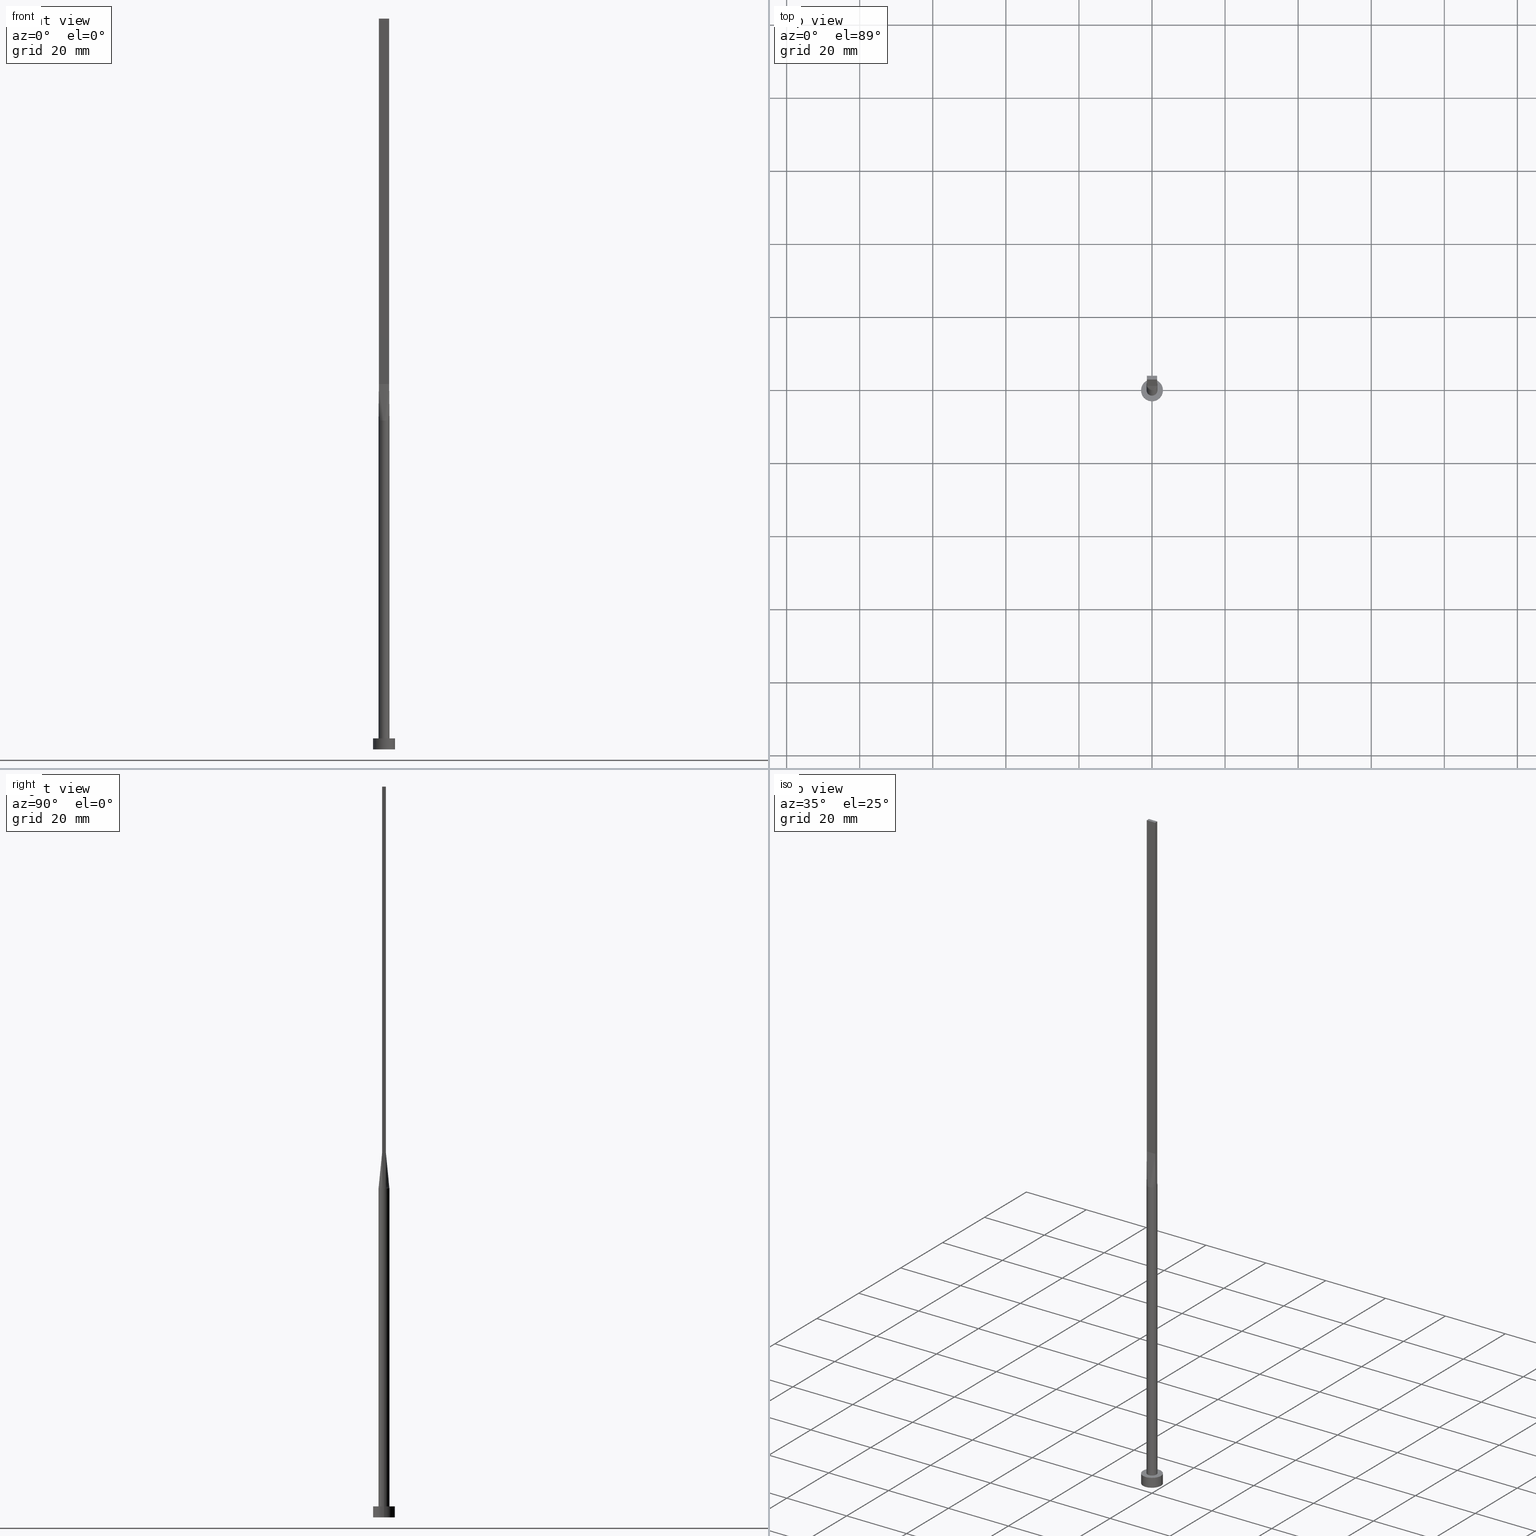
[diagram: canonical four-view strip — front | top / right | iso, engineering-drawing reading convention]
A machine part, canonical four-view strip (front | top / right | iso — engineering-drawing reading convention). The complete STEP part file that produces these views, byte-faithful:
ISO-10303-21;
HEADER;
FILE_DESCRIPTION (( 'STEP AP203' ),
    '1' );
FILE_NAME ('90cb.STEP',
    '2026-02-12T09:07:30',
    ( '' ),
    ( '' ),
    'SwSTEP 2.0',
    'SolidWorks 2019',
    '' );
FILE_SCHEMA (( 'CONFIG_CONTROL_DESIGN' ));
ENDSEC;

DATA;
#1 = ORIENTED_EDGE ( 'NONE', *, *, #20, .F. ) ;
#2 =( NAMED_UNIT ( * ) SI_UNIT ( $, .STERADIAN. ) SOLID_ANGLE_UNIT ( ) );
#3 = APPROVAL_ROLE ( '' ) ;
#4 = CC_DESIGN_APPROVAL ( #464, ( #422 ) ) ;
#5 = DIRECTION ( 'NONE',  ( 0.000000000000000000, 0.000000000000000000, 1.000000000000000000 ) ) ;
#6 = DIRECTION ( 'NONE',  ( 0.000000000000000000, 0.000000000000000000, 1.000000000000000000 ) ) ;
#7 = EDGE_CURVE ( 'NONE', #493, #580, #53, .T. ) ;
#8 = CARTESIAN_POINT ( 'NONE',  ( 0.000000000000000000, 0.000000000000000000, 0.000000000000000000 ) ) ;
#9 = CARTESIAN_POINT ( 'NONE',  ( 1.283333333333333437, -0.4999999999999997780, 99.99999999999998579 ) ) ;
#10 = DIRECTION ( 'NONE',  ( 0.000000000000000000, 0.000000000000000000, 1.000000000000000000 ) ) ;
#11 = VECTOR ( 'NONE', #76, 1000.000000000000000 ) ;
#12 = CARTESIAN_POINT ( 'NONE',  ( -1.399999999999999911, -0.4999999999999995559, 200.0000000000000000 ) ) ;
#13 = CARTESIAN_POINT ( 'NONE',  ( -1.399999999999999911, -0.4999999999999995559, 200.0000000000000000 ) ) ;
#14 = SHAPE_DEFINITION_REPRESENTATION ( #334, #383 ) ;
#15 = PLANE ( 'NONE',  #271 ) ;
#16 = CARTESIAN_POINT ( 'NONE',  ( 0.000000000000000000, 0.000000000000000000, 90.00000000000000000 ) ) ;
#17 = EDGE_CURVE ( 'NONE', #110, #37, #24, .T. ) ;
#18 = CARTESIAN_POINT ( 'NONE',  ( -1.399999999999999689, 0.5000000000000002220, 99.99999999999998579 ) ) ;
#19 = CARTESIAN_POINT ( 'NONE',  ( 0.5833333333333334814, 0.5000000000000002220, 99.99999999999997158 ) ) ;
#20 = EDGE_CURVE ( 'NONE', #532, #265, #213, .T. ) ;
#21 = CARTESIAN_POINT ( 'NONE',  ( -1.399999999999999689, 0.3333333333333334814, 99.99999999999997158 ) ) ;
#22 = EDGE_CURVE ( 'NONE', #449, #350, #477, .T. ) ;
#23 = CARTESIAN_POINT ( 'NONE',  ( -1.316960349798174557, 0.7311494208568980468, 90.00000000000004263 ) ) ;
#24 = LINE ( 'NONE', #118, #410 ) ;
#25 = FACE_OUTER_BOUND ( 'NONE', #401, .T. ) ;
#26 = VERTEX_POINT ( 'NONE', #263 ) ;
#27 = CARTESIAN_POINT ( 'NONE',  ( -0.4666666666666663965, 0.5000000000000002220, 99.99999999999997158 ) ) ;
#28 = CARTESIAN_POINT ( 'NONE',  ( 1.373020107211260665, -0.6153643240040224116, 90.00000000000000000 ) ) ;
#29 = CARTESIAN_POINT ( 'NONE',  ( 1.412628473635865189, 0.5045102250504699404, 90.00000000000000000 ) ) ;
#30 = VERTEX_POINT ( 'NONE', #348 ) ;
#31 = FACE_OUTER_BOUND ( 'NONE', #540, .T. ) ;
#32 = DIRECTION ( 'NONE',  ( 2.168404344971009361E-16, 1.000000000000000000, 0.000000000000000000 ) ) ;
#33 = EDGE_LOOP ( 'NONE', ( #346, #559, #579, #40, #260, #498 ) ) ;
#34 = CARTESIAN_POINT ( 'NONE',  ( -0.5833333333333329263, -0.4999999999999996669, 99.99999999999997158 ) ) ;
#35 = CARTESIAN_POINT ( 'NONE',  ( 1.373020107211261109, 0.6153643240040217455, 90.00000000000001421 ) ) ;
#36 = ORIENTED_EDGE ( 'NONE', *, *, #320, .T. ) ;
#37 = VERTEX_POINT ( 'NONE', #300 ) ;
#38 = APPROVAL ( #59, 'NEUR�EN�' ) ;
#39 = ORIENTED_EDGE ( 'NONE', *, *, #262, .F. ) ;
#40 = ORIENTED_EDGE ( 'NONE', *, *, #492, .F. ) ;
#41 = APPROVAL_STATUS ( 'not_yet_approved' ) ;
#42 = APPROVAL_DATE_TIME ( #145, #61 ) ;
#43 = CARTESIAN_POINT ( 'NONE',  ( -1.399999999999999911, -0.4999999999999995559, 99.99999999999998579 ) ) ;
#44 = DIRECTION ( 'NONE',  ( -1.000000000000000000, 0.000000000000000000, 0.000000000000000000 ) ) ;
#45 = EDGE_CURVE ( 'NONE', #138, #30, #206, .T. ) ;
#46 = PERSON_AND_ORGANIZATION ( #280, #79 ) ;
#47 = FACE_OUTER_BOUND ( 'NONE', #397, .T. ) ;
#48 = LINE ( 'NONE', #105, #310 ) ;
#49 = B_SPLINE_SURFACE_WITH_KNOTS ( 'NONE', 3, 1, ( 
 ( #349, #345 ),
 ( #442, #21 ),
 ( #68, #72 ),
 ( #531, #297 ),
 ( #490, #252 ),
 ( #207, #166 ) ),
 .UNSPECIFIED., .F., .F., .F.,
 ( 4, 2, 4 ),
 ( 2, 2 ),
 ( 0.000000000000000000, 0.5000000000000000000, 1.000000000000000000 ),
 ( 0.000000000000000000, 1.000000000000000000 ),
 .UNSPECIFIED. ) ;
#50 = DIRECTION ( 'NONE',  ( 1.000000000000000000, 0.000000000000000000, 0.000000000000000000 ) ) ;
#51 = DIRECTION ( 'NONE',  ( 0.000000000000000000, 0.000000000000000000, 1.000000000000000000 ) ) ;
#52 = PERSON_AND_ORGANIZATION_ROLE ( 'creator' ) ;
#53 = CIRCLE ( 'NONE', #360, 1.500000000000000222 ) ;
#54 = DIRECTION ( 'NONE',  ( -0.001261285608005533083, 0.0004504591457163206877, 0.9999991031221843185 ) ) ;
#55 = CARTESIAN_POINT ( 'NONE',  ( 0.000000000000000000, 0.000000000000000000, 3.000000000000000000 ) ) ;
#56 = CALENDAR_DATE ( 2026, 12, 2 ) ;
#57 = CARTESIAN_POINT ( 'NONE',  ( -1.412646936588081381, 0.5045169241220069933, 90.00000000000000000 ) ) ;
#58 = CARTESIAN_POINT ( 'NONE',  ( 1.399999999999999689, -0.1666666666666699048, 99.99999999999997158 ) ) ;
#59 = APPROVAL_STATUS ( 'not_yet_approved' ) ;
#60 = VECTOR ( 'NONE', #258, 1000.000000000000000 ) ;
#61 = APPROVAL ( #41, 'NEUR�EN�' ) ;
#62 = CARTESIAN_POINT ( 'NONE',  ( -0.1761797990592590402, 1.499999999999999778, 89.99999999999997158 ) ) ;
#63 = COORDINATED_UNIVERSAL_TIME_OFFSET ( 1, 0, .AHEAD. ) ;
#64 = ADVANCED_FACE ( 'NONE', ( #31 ), #293, .T. ) ;
#65 = EDGE_LOOP ( 'NONE', ( #302, #73, #529, #212 ) ) ;
#66 = CARTESIAN_POINT ( 'NONE',  ( -1.373020107211261331, 0.6153643240040217455, 90.00000000000000000 ) ) ;
#67 = CARTESIAN_POINT ( 'NONE',  ( 1.166666666666666963, -0.4999999999999997780, 99.99999999999998579 ) ) ;
#68 = CARTESIAN_POINT ( 'NONE',  ( -1.500000000000000666, 0.1732137494637012443, 90.00000000000001421 ) ) ;
#69 = EDGE_LOOP ( 'NONE', ( #78, #1, #174, #451 ) ) ;
#70 = CARTESIAN_POINT ( 'NONE',  ( 0.6732153042498577600, 1.351288176626052717, 90.00000000000000000 ) ) ;
#71 = CARTESIAN_POINT ( 'NONE',  ( -1.062433464748102852, -1.070418989248103081, 90.00000000000000000 ) ) ;
#72 = CARTESIAN_POINT ( 'NONE',  ( -1.399999999999999689, 0.1666666666666668517, 99.99999999999997158 ) ) ;
#73 = ORIENTED_EDGE ( 'NONE', *, *, #556, .F. ) ;
#74 = AXIS2_PLACEMENT_3D ( 'NONE', #285, #512, #415 ) ;
#75 = PLANE ( 'NONE',  #168 ) ;
#76 = DIRECTION ( 'NONE',  ( -0.000000000000000000, -0.000000000000000000, -1.000000000000000000 ) ) ;
#77 = CARTESIAN_POINT ( 'NONE',  ( -1.062433464748102407, 1.070418989248103525, 89.99999999999997158 ) ) ;
#78 = ORIENTED_EDGE ( 'NONE', *, *, #262, .T. ) ;
#79 = ORGANIZATION ( 'NEUR�EN�', 'NEUR�EN�', '' ) ;
#80 = ADVANCED_FACE ( 'NONE', ( #523 ), #274, .T. ) ;
#81 = CARTESIAN_POINT ( 'NONE',  ( 0.000000000000000000, 0.000000000000000000, 3.000000000000000000 ) ) ;
#82 = PLANE ( 'NONE',  #308 ) ;
#83 = VERTEX_POINT ( 'NONE', #241 ) ;
#84 = VERTEX_POINT ( 'NONE', #231 ) ;
#85 = EDGE_CURVE ( 'NONE', #443, #138, #385, .T. ) ;
#86 = VECTOR ( 'NONE', #148, 1000.000000000000114 ) ;
#87 = VERTEX_POINT ( 'NONE', #96 ) ;
#88 = ORIENTED_EDGE ( 'NONE', *, *, #278, .F. ) ;
#89 = DATE_TIME_ROLE ( 'classification_date' ) ;
#90 = ORIENTED_EDGE ( 'NONE', *, *, #193, .F. ) ;
#91 = CALENDAR_DATE ( 2026, 12, 2 ) ;
#92 = DIRECTION ( 'NONE',  ( 0.000000000000000000, 0.000000000000000000, 1.000000000000000000 ) ) ;
#93 = DIRECTION ( 'NONE',  ( 1.000000000000000000, 0.000000000000000000, 0.000000000000000000 ) ) ;
#94 =( NAMED_UNIT ( * ) PLANE_ANGLE_UNIT ( ) SI_UNIT ( $, .RADIAN. ) );
#95 = LINE ( 'NONE', #414, #176 ) ;
#96 = CARTESIAN_POINT ( 'NONE',  ( -1.399999999999999911, -0.4999999999999995559, 200.0000000000000000 ) ) ;
#97 = PERSON_AND_ORGANIZATION ( #280, #79 ) ;
#98 = DIRECTION ( 'NONE',  ( 0.000000000000000000, 0.000000000000000000, 1.000000000000000000 ) ) ;
#99 = CARTESIAN_POINT ( 'NONE',  ( 1.500000000000000000, 1.053334699963867185E-17, 90.00000000000000000 ) ) ;
#100 = PERSON_AND_ORGANIZATION ( #280, #79 ) ;
#101 = LINE ( 'NONE', #460, #137 ) ;
#102 = DIRECTION ( 'NONE',  ( -1.000000000000000000, -0.000000000000000000, -0.000000000000000000 ) ) ;
#103 = B_SPLINE_CURVE_WITH_KNOTS ( 'NONE', 3,
 ( #29, #524, #119, #392, #387, #115, #301, #574, #170, #211, #294, #341, #487, #77, #203, #304, #570, #264 ),
 .UNSPECIFIED., .F., .F.,
 ( 4, 2, 2, 2, 2, 2, 2, 2, 4 ),
 ( 0.000000000000000000, 0.1250000000000000000, 0.2500000000000000000, 0.3750000000000000000, 0.5000000000000000000, 0.6250000000000000000, 0.7500000000000000000, 0.8750000000000000000, 1.000000000000000000 ),
 .UNSPECIFIED. ) ;
#104 = CARTESIAN_POINT ( 'NONE',  ( 0.000000000000000000, 0.000000000000000000, 0.000000000000000000 ) ) ;
#105 = CARTESIAN_POINT ( 'NONE',  ( 1.399999999999999911, -0.4999999999999997780, 200.0000000000000000 ) ) ;
#106 = APPROVAL_ROLE ( '' ) ;
#107 = CARTESIAN_POINT ( 'NONE',  ( -1.161819288130433891, 0.9587178835757675932, 90.00000000000002842 ) ) ;
#108 = CARTESIAN_POINT ( 'NONE',  ( 0.000000000000000000, 0.000000000000000000, 90.00000000000000000 ) ) ;
#109 = EDGE_CURVE ( 'NONE', #87, #449, #555, .T. ) ;
#110 = VERTEX_POINT ( 'NONE', #197 ) ;
#111 = CARTESIAN_POINT ( 'NONE',  ( 0.8182264876570948253, 1.266912425724810110, 89.99999999999997158 ) ) ;
#112 = B_SPLINE_SURFACE_WITH_KNOTS ( 'NONE', 3, 1, ( 
 ( #438, #214 ),
 ( #35, #381 ),
 ( #217, #246 ),
 ( #429, #158 ),
 ( #292, #245 ),
 ( #111, #19 ),
 ( #70, #347 ),
 ( #287, #476 ),
 ( #201, #379 ),
 ( #62, #436 ),
 ( #568, #480 ),
 ( #253, #27 ),
 ( #525, #560 ),
 ( #156, #205 ),
 ( #107, #243 ),
 ( #23, #338 ),
 ( #66, #427 ),
 ( #160, #18 ) ),
 .UNSPECIFIED., .F., .F., .F.,
 ( 4, 2, 2, 2, 2, 2, 2, 2, 4 ),
 ( 2, 2 ),
 ( 0.000000000000000000, 0.1250000000000000000, 0.2500000000000000000, 0.3750000000000000000, 0.5000000000000000000, 0.6250000000000000000, 0.7500000000000000000, 0.8750000000000000000, 1.000000000000000000 ),
 ( 0.000000000000000000, 1.000000000000000000 ),
 .UNSPECIFIED. ) ;
#113 = APPROVAL_DATE_TIME ( #152, #38 ) ;
#114 = CARTESIAN_POINT ( 'NONE',  ( 1.316960349798174335, -0.7311494208568987130, 90.00000000000004263 ) ) ;
#115 = CARTESIAN_POINT ( 'NONE',  ( 0.8182264876570948253, 1.266912425724810110, 89.99999999999997158 ) ) ;
#116 = ORIENTED_EDGE ( 'NONE', *, *, #419, .F. ) ;
#117 = CARTESIAN_POINT ( 'NONE',  ( 1.399999999999999911, -0.4999999999999997780, 99.99999999999998579 ) ) ;
#118 = CARTESIAN_POINT ( 'NONE',  ( 3.000000000000000444, 3.673940397442060361E-16, 3.000000000000000000 ) ) ;
#119 = CARTESIAN_POINT ( 'NONE',  ( 1.316960349798174557, 0.7311494208568982689, 90.00000000000001421 ) ) ;
#120 = ORIENTED_EDGE ( 'NONE', *, *, #364, .T. ) ;
#121 = DIRECTION ( 'NONE',  ( -1.000000000000000000, 0.000000000000000000, 0.000000000000000000 ) ) ;
#122 = AXIS2_PLACEMENT_3D ( 'NONE', #522, #474, #121 ) ;
#123 = CARTESIAN_POINT ( 'NONE',  ( 0.8182264876570946033, -1.266912425724810998, 89.99999999999998579 ) ) ;
#124 = FACE_OUTER_BOUND ( 'NONE', #534, .T. ) ;
#125 = ORIENTED_EDGE ( 'NONE', *, *, #109, .F. ) ;
#126 = EDGE_CURVE ( 'NONE', #439, #110, #564, .T. ) ;
#127 = CARTESIAN_POINT ( 'NONE',  ( -1.406306433696128178, -0.5022522977486166829, 95.00000000000000000 ) ) ;
#128 = FACE_OUTER_BOUND ( 'NONE', #405, .T. ) ;
#129 = LOCAL_TIME ( 10, 7, 30.00000000000000000, #545 ) ;
#130 = ORIENTED_EDGE ( 'NONE', *, *, #492, .T. ) ;
#131 = PRODUCT_RELATED_PRODUCT_CATEGORY ( 'detail', '', ( #426 ) ) ;
#132 = ADVANCED_FACE ( 'NONE', ( #373 ), #455, .T. ) ;
#133 = ORIENTED_EDGE ( 'NONE', *, *, #218, .F. ) ;
#134 = AXIS2_PLACEMENT_3D ( 'NONE', #104, #240, #327 ) ;
#135 = ORIENTED_EDGE ( 'NONE', *, *, #185, .T. ) ;
#136 = CALENDAR_DATE ( 2026, 12, 2 ) ;
#137 = VECTOR ( 'NONE', #270, 1000.000000000000000 ) ;
#138 = VERTEX_POINT ( 'NONE', #99 ) ;
#139 = PERSON_AND_ORGANIZATION ( #280, #79 ) ;
#140 = LINE ( 'NONE', #461, #286 ) ;
#141 = DIRECTION ( 'NONE',  ( -2.168404344971009361E-16, -1.000000000000000000, 0.000000000000000000 ) ) ;
#142 = DIRECTION ( 'NONE',  ( 1.000000000000000000, 0.000000000000000000, 0.000000000000000000 ) ) ;
#143 = CARTESIAN_POINT ( 'NONE',  ( -3.000000000000000444, 0.000000000000000000, 3.000000000000000000 ) ) ;
#144 = CARTESIAN_POINT ( 'NONE',  ( 0.000000000000000000, 0.000000000000000000, 3.000000000000000000 ) ) ;
#145 = DATE_AND_TIME ( #550, #248 ) ;
#146 = CARTESIAN_POINT ( 'NONE',  ( -1.399999999999999689, 0.5000000000000002220, 200.0000000000000000 ) ) ;
#147 = CC_DESIGN_DATE_AND_TIME_ASSIGNMENT ( #497, #89, ( #306 ) ) ;
#148 = DIRECTION ( 'NONE',  ( 0.001261285608005576668, -0.0004504591457162014255, 0.9999991031221843185 ) ) ;
#149 = CIRCLE ( 'NONE', #453, 1.500000000000000222 ) ;
#150 = FACE_OUTER_BOUND ( 'NONE', #167, .T. ) ;
#151 = DIRECTION ( 'NONE',  ( 0.000000000000000000, 0.000000000000000000, 1.000000000000000000 ) ) ;
#152 = DATE_AND_TIME ( #56, #491 ) ;
#153 = EDGE_CURVE ( 'NONE', #84, #532, #191, .T. ) ;
#154 = DIRECTION ( 'NONE',  ( 1.000000000000000000, 0.000000000000000000, 0.000000000000000000 ) ) ;
#155 = ORIENTED_EDGE ( 'NONE', *, *, #185, .F. ) ;
#156 = CARTESIAN_POINT ( 'NONE',  ( -1.062433464748102407, 1.070418989248103525, 89.99999999999997158 ) ) ;
#157 = CARTESIAN_POINT ( 'NONE',  ( -0.8182264876570952694, -1.266912425724809665, 89.99999999999997158 ) ) ;
#158 = CARTESIAN_POINT ( 'NONE',  ( 0.9333333333333331261, 0.5000000000000002220, 99.99999999999997158 ) ) ;
#159 = ORIENTED_EDGE ( 'NONE', *, *, #45, .F. ) ;
#160 = CARTESIAN_POINT ( 'NONE',  ( -1.412612867392256444, 0.5045045954972340319, 90.00000000000000000 ) ) ;
#161 = CARTESIAN_POINT ( 'NONE',  ( -1.412612867392256444, -0.5045045954972339208, 90.00000000000000000 ) ) ;
#162 = DIRECTION ( 'NONE',  ( 1.000000000000000000, 0.000000000000000000, 0.000000000000000000 ) ) ;
#163 = ORIENTED_EDGE ( 'NONE', *, *, #521, .F. ) ;
#164 = CARTESIAN_POINT ( 'NONE',  ( 1.399999999999999911, -0.3333333333333354243, 99.99999999999997158 ) ) ;
#165 = CARTESIAN_POINT ( 'NONE',  ( 0.6732153042498572049, -1.351288176626052939, 90.00000000000001421 ) ) ;
#166 = CARTESIAN_POINT ( 'NONE',  ( -1.399999999999999911, -0.4999999999999995559, 99.99999999999998579 ) ) ;
#167 = EDGE_LOOP ( 'NONE', ( #337, #496 ) ) ;
#168 = AXIS2_PLACEMENT_3D ( 'NONE', #431, #515, #565 ) ;
#169 = CARTESIAN_POINT ( 'NONE',  ( -1.316960349798174557, -0.7311494208568978248, 90.00000000000001421 ) ) ;
#170 = CARTESIAN_POINT ( 'NONE',  ( 0.1761797990592590679, 1.500000000000000222, 90.00000000000000000 ) ) ;
#171 = CIRCLE ( 'NONE', #500, 1.500000000000000222 ) ;
#172 = EDGE_CURVE ( 'NONE', #493, #265, #549, .T. ) ;
#173 = CARTESIAN_POINT ( 'NONE',  ( 0.2333333333333338366, -0.4999999999999997780, 99.99999999999997158 ) ) ;
#174 = ORIENTED_EDGE ( 'NONE', *, *, #153, .F. ) ;
#175 = EDGE_CURVE ( 'NONE', #224, #37, #494, .T. ) ;
#176 = VECTOR ( 'NONE', #190, 1000.000000000000000 ) ;
#177 = ORIENTED_EDGE ( 'NONE', *, *, #22, .F. ) ;
#178 = ORIENTED_EDGE ( 'NONE', *, *, #288, .T. ) ;
#179 = APPLICATION_PROTOCOL_DEFINITION ( 'international standard', 'config_control_design', 1994, #215 ) ;
#180 = EDGE_CURVE ( 'NONE', #26, #204, #48, .T. ) ;
#181 = AXIS2_PLACEMENT_3D ( 'NONE', #81, #433, #303 ) ;
#182 = ORIENTED_EDGE ( 'NONE', *, *, #440, .T. ) ;
#183 = CARTESIAN_POINT ( 'NONE',  ( 0.000000000000000000, 0.000000000000000000, 0.000000000000000000 ) ) ;
#184 = UNCERTAINTY_MEASURE_WITH_UNIT (LENGTH_MEASURE( 1.000000000000000082E-05 ), #189, 'distance_accuracy_value', 'NONE');
#185 = EDGE_CURVE ( 'NONE', #580, #350, #171, .T. ) ;
#186 = DIRECTION ( 'NONE',  ( -1.000000000000000000, 7.744301232039317914E-17, 0.000000000000000000 ) ) ;
#187 = CARTESIAN_POINT ( 'NONE',  ( 1.399999999999999911, -0.4999999999999997780, 99.99999999999998579 ) ) ;
#188 = VECTOR ( 'NONE', #102, 1000.000000000000000 ) ;
#189 =( LENGTH_UNIT ( ) NAMED_UNIT ( * ) SI_UNIT ( .MILLI., .METRE. ) );
#190 = DIRECTION ( 'NONE',  ( 1.000000000000000000, -7.744301232039317914E-17, 0.000000000000000000 ) ) ;
#191 = LINE ( 'NONE', #369, #576 ) ;
#192 = COORDINATED_UNIVERSAL_TIME_OFFSET ( 1, 0, .AHEAD. ) ;
#193 = EDGE_CURVE ( 'NONE', #110, #439, #244, .T. ) ;
#194 = PLANE ( 'NONE',  #467 ) ;
#195 = CARTESIAN_POINT ( 'NONE',  ( 1.412628473635865189, 0.5045102250504699404, 90.00000000000000000 ) ) ;
#196 = CARTESIAN_POINT ( 'NONE',  ( 1.412648369950143756, -0.5045174509283282260, 90.00000000000000000 ) ) ;
#197 = CARTESIAN_POINT ( 'NONE',  ( 3.000000000000000444, 3.673940397442060361E-16, 3.000000000000000000 ) ) ;
#198 = CIRCLE ( 'NONE', #526, 1.500000000000000222 ) ;
#199 = CARTESIAN_POINT ( 'NONE',  ( 1.499999999999999556, 0.1732137494637011610, 89.99999999999997158 ) ) ;
#200 = LOCAL_TIME ( 10, 7, 30.00000000000000000, #313 ) ;
#201 = CARTESIAN_POINT ( 'NONE',  ( 0.1761797990592590679, 1.500000000000000222, 90.00000000000000000 ) ) ;
#202 = CARTESIAN_POINT ( 'NONE',  ( 1.062433464748102629, -1.070418989248103747, 89.99999999999997158 ) ) ;
#203 = CARTESIAN_POINT ( 'NONE',  ( -1.161819288130433891, 0.9587178835757675932, 90.00000000000002842 ) ) ;
#204 = VERTEX_POINT ( 'NONE', #187 ) ;
#205 = CARTESIAN_POINT ( 'NONE',  ( -0.8166666666666664298, 0.5000000000000002220, 99.99999999999997158 ) ) ;
#206 = LINE ( 'NONE', #444, #60 ) ;
#207 = CARTESIAN_POINT ( 'NONE',  ( -1.412612867392256444, -0.5045045954972340319, 90.00000000000000000 ) ) ;
#208 = EDGE_LOOP ( 'NONE', ( #116, #88 ) ) ;
#209 = CARTESIAN_POINT ( 'NONE',  ( -1.412629890847167724, -0.5045107419440655327, 90.00000000000000000 ) ) ;
#210 = CARTESIAN_POINT ( 'NONE',  ( 0.1166666666666671959, -0.4999999999999997780, 99.99999999999997158 ) ) ;
#211 = CARTESIAN_POINT ( 'NONE',  ( -0.1761797990592590402, 1.499999999999999778, 89.99999999999997158 ) ) ;
#212 = ORIENTED_EDGE ( 'NONE', *, *, #180, .T. ) ;
#213 = LINE ( 'NONE', #395, #11 ) ;
#214 = CARTESIAN_POINT ( 'NONE',  ( 1.399999999999999689, 0.5000000000000002220, 99.99999999999998579 ) ) ;
#215 = APPLICATION_CONTEXT ( 'configuration controlled 3d designs of mechanical parts and assemblies' ) ;
#216 = CARTESIAN_POINT ( 'NONE',  ( -0.4666666666666662300, -0.4999999999999996669, 99.99999999999997158 ) ) ;
#217 = CARTESIAN_POINT ( 'NONE',  ( 1.316960349798174557, 0.7311494208568982689, 90.00000000000001421 ) ) ;
#218 = EDGE_CURVE ( 'NONE', #532, #87, #366, .T. ) ;
#219 = EDGE_LOOP ( 'NONE', ( #267, #269, #537, #36 ) ) ;
#220 = AXIS2_PLACEMENT_3D ( 'NONE', #459, #51, #421 ) ;
#221 = ORIENTED_EDGE ( 'NONE', *, *, #17, .F. ) ;
#222 = ORIENTED_EDGE ( 'NONE', *, *, #533, .T. ) ;
#223 = AXIS2_PLACEMENT_3D ( 'NONE', #55, #562, #162 ) ;
#224 = VERTEX_POINT ( 'NONE', #324 ) ;
#225 = MECHANICAL_CONTEXT ( 'NONE', #239, 'mechanical' ) ;
#226 = DIRECTION ( 'NONE',  ( 0.000000000000000000, 0.000000000000000000, 1.000000000000000000 ) ) ;
#227 = DIRECTION ( 'NONE',  ( 1.000000000000000000, 0.000000000000000000, 0.000000000000000000 ) ) ;
#228 = APPROVAL_PERSON_ORGANIZATION ( #46, #464, #3 ) ;
#229 = LINE ( 'NONE', #275, #470 ) ;
#230 = DIRECTION ( 'NONE',  ( -0.000000000000000000, -0.000000000000000000, -1.000000000000000000 ) ) ;
#231 = CARTESIAN_POINT ( 'NONE',  ( 1.399999999999999689, 0.5000000000000002220, 200.0000000000000000 ) ) ;
#232 = CC_DESIGN_PERSON_AND_ORGANIZATION_ASSIGNMENT ( #581, #359, ( #306 ) ) ;
#233 = CIRCLE ( 'NONE', #223, 1.500000000000000222 ) ;
#234 = APPLICATION_PROTOCOL_DEFINITION ( 'international standard', 'config_control_design', 1994, #239 ) ;
#235 = ADVANCED_FACE ( 'NONE', ( #506 ), #552, .F. ) ;
#236 = CARTESIAN_POINT ( 'NONE',  ( 0.000000000000000000, 0.000000000000000000, 200.0000000000000000 ) ) ;
#237 = DIRECTION ( 'NONE',  ( -1.000000000000000000, -2.168404344971008868E-16, 0.000000000000000000 ) ) ;
#238 = DESIGN_CONTEXT ( 'detailed design', #215, 'design' ) ;
#239 = APPLICATION_CONTEXT ( 'configuration controlled 3d designs of mechanical parts and assemblies' ) ;
#240 = DIRECTION ( 'NONE',  ( 0.000000000000000000, 0.000000000000000000, 1.000000000000000000 ) ) ;
#241 = CARTESIAN_POINT ( 'NONE',  ( -1.500000000000000222, 0.000000000000000000, 3.000000000000000000 ) ) ;
#242 = AXIS2_PLACEMENT_3D ( 'NONE', #411, #230, #501 ) ;
#243 = CARTESIAN_POINT ( 'NONE',  ( -0.9333333333333331261, 0.5000000000000002220, 99.99999999999997158 ) ) ;
#244 = CIRCLE ( 'NONE', #319, 3.000000000000000444 ) ;
#245 = CARTESIAN_POINT ( 'NONE',  ( 0.8166666666666666519, 0.5000000000000002220, 99.99999999999998579 ) ) ;
#246 = CARTESIAN_POINT ( 'NONE',  ( 1.166666666666666297, 0.5000000000000002220, 99.99999999999998579 ) ) ;
#247 = ORIENTED_EDGE ( 'NONE', *, *, #563, .F. ) ;
#248 = LOCAL_TIME ( 10, 7, 30.00000000000000000, #192 ) ;
#249 = FACE_OUTER_BOUND ( 'NONE', #69, .T. ) ;
#250 = CC_DESIGN_PERSON_AND_ORGANIZATION_ASSIGNMENT ( #139, #409, ( #422 ) ) ;
#251 = CARTESIAN_POINT ( 'NONE',  ( -0.1761797990592596230, -1.500000000000000000, 90.00000000000000000 ) ) ;
#252 = CARTESIAN_POINT ( 'NONE',  ( -1.399999999999999911, -0.3333333333333329818, 99.99999999999997158 ) ) ;
#253 = CARTESIAN_POINT ( 'NONE',  ( -0.6732153042498576490, 1.351288176626052495, 90.00000000000001421 ) ) ;
#254 = CARTESIAN_POINT ( 'NONE',  ( 0.4666666666666671737, -0.4999999999999997780, 99.99999999999997158 ) ) ;
#255 = DIRECTION ( 'NONE',  ( 1.000000000000000000, -2.168404344971009361E-16, 0.000000000000000000 ) ) ;
#256 = VERTEX_POINT ( 'NONE', #195 ) ;
#257 = VECTOR ( 'NONE', #321, 1000.000000000000000 ) ;
#258 = DIRECTION ( 'NONE',  ( -0.000000000000000000, -0.000000000000000000, -1.000000000000000000 ) ) ;
#259 = LINE ( 'NONE', #528, #554 ) ;
#260 = ORIENTED_EDGE ( 'NONE', *, *, #7, .F. ) ;
#261 = LOCAL_TIME ( 10, 7, 30.00000000000000000, #507 ) ;
#262 = EDGE_CURVE ( 'NONE', #446, #265, #329, .T. ) ;
#263 = CARTESIAN_POINT ( 'NONE',  ( 1.399999999999999911, -0.4999999999999997780, 200.0000000000000000 ) ) ;
#264 = CARTESIAN_POINT ( 'NONE',  ( -1.412646936588081381, 0.5045169241220069933, 90.00000000000000000 ) ) ;
#265 = VERTEX_POINT ( 'NONE', #468 ) ;
#266 = EDGE_LOOP ( 'NONE', ( #222, #312, #408, #305 ) ) ;
#267 = ORIENTED_EDGE ( 'NONE', *, *, #153, .T. ) ;
#268 = MANIFOLD_SOLID_BREP ( 'P�idat vysunut�m5', #516 ) ;
#269 = ORIENTED_EDGE ( 'NONE', *, *, #218, .T. ) ;
#270 = DIRECTION ( 'NONE',  ( -0.000000000000000000, -0.000000000000000000, -1.000000000000000000 ) ) ;
#271 = AXIS2_PLACEMENT_3D ( 'NONE', #236, #226, #368 ) ;
#272 = DIRECTION ( 'NONE',  ( 1.000000000000000000, 0.000000000000000000, 0.000000000000000000 ) ) ;
#273 = CARTESIAN_POINT ( 'NONE',  ( 1.412612867392256222, -0.5045045954972348090, 90.00000000000000000 ) ) ;
#274 = B_SPLINE_SURFACE_WITH_KNOTS ( 'NONE', 3, 1, ( 
 ( #161, #573 ),
 ( #344, #527 ),
 ( #169, #296 ),
 ( #391, #486 ),
 ( #71, #441 ),
 ( #157, #34 ),
 ( #489, #216 ),
 ( #340, #399 ),
 ( #251, #577 ),
 ( #386, #210 ),
 ( #518, #173 ),
 ( #165, #254 ),
 ( #123, #437 ),
 ( #202, #380 ),
 ( #561, #566 ),
 ( #114, #67 ),
 ( #28, #9 ),
 ( #273, #277 ) ),
 .UNSPECIFIED., .F., .F., .F.,
 ( 4, 2, 2, 2, 2, 2, 2, 2, 4 ),
 ( 2, 2 ),
 ( 0.000000000000000000, 0.1250000000000000000, 0.2500000000000000000, 0.3750000000000000000, 0.5000000000000000000, 0.6250000000000000000, 0.7500000000000000000, 0.8750000000000000000, 1.000000000000000000 ),
 ( 0.000000000000000000, 1.000000000000000000 ),
 .UNSPECIFIED. ) ;
#275 = CARTESIAN_POINT ( 'NONE',  ( 1.399999999999999689, 0.5000000000000002220, 99.99999999999998579 ) ) ;
#276 = CARTESIAN_POINT ( 'NONE',  ( 0.000000000000000000, 0.000000000000000000, 3.000000000000000000 ) ) ;
#277 = CARTESIAN_POINT ( 'NONE',  ( 1.399999999999999911, -0.4999999999999997780, 99.99999999999998579 ) ) ;
#278 = EDGE_CURVE ( 'NONE', #30, #83, #233, .T. ) ;
#279 = PLANE ( 'NONE',  #376 ) ;
#280 = PERSON ( 'NEUR�EN�', 'NEUR�EN�', 'NEUR�EN�', ('NEUR�EN�'), ('NEUR�EN�'), ('NEUR�EN�') ) ;
#281 = CARTESIAN_POINT ( 'NONE',  ( 1.399999999999999911, -0.4999999999999997780, 200.0000000000000000 ) ) ;
#282 = CARTESIAN_POINT ( 'NONE',  ( 1.406306433696127955, -0.5022522977486173490, 95.00000000000000000 ) ) ;
#283 = CARTESIAN_POINT ( 'NONE',  ( -1.406306433696127955, 0.5022522977486171269, 95.00000000000000000 ) ) ;
#284 = LINE ( 'NONE', #282, #539 ) ;
#285 = CARTESIAN_POINT ( 'NONE',  ( 0.000000000000000000, 0.000000000000000000, 90.00000000000000000 ) ) ;
#286 = VECTOR ( 'NONE', #323, 1000.000000000000000 ) ;
#287 = CARTESIAN_POINT ( 'NONE',  ( 0.3520402531411749303, 1.468082505288407447, 90.00000000000001421 ) ) ;
#288 = EDGE_CURVE ( 'NONE', #256, #493, #103, .T. ) ;
#289 = CARTESIAN_POINT ( 'NONE',  ( 1.399999999999999689, 0.3333333333333312054, 99.99999999999997158 ) ) ;
#290 = ORIENTED_EDGE ( 'NONE', *, *, #504, .F. ) ;
#291 = CC_DESIGN_PERSON_AND_ORGANIZATION_ASSIGNMENT ( #97, #362, ( #447 ) ) ;
#292 = CARTESIAN_POINT ( 'NONE',  ( 1.062433464748102407, 1.070418989248103525, 90.00000000000000000 ) ) ;
#293 = CYLINDRICAL_SURFACE ( 'NONE', #181, 3.000000000000000444 ) ;
#294 = CARTESIAN_POINT ( 'NONE',  ( -0.3520402531411749858, 1.468082505288407891, 90.00000000000000000 ) ) ;
#295 = CARTESIAN_POINT ( 'NONE',  ( 1.469173953365106700, -0.3461335547732530271, 89.99999999999998579 ) ) ;
#296 = CARTESIAN_POINT ( 'NONE',  ( -1.166666666666666297, -0.4999999999999995559, 99.99999999999998579 ) ) ;
#297 = CARTESIAN_POINT ( 'NONE',  ( -1.399999999999999689, -0.1666666666666663799, 99.99999999999997158 ) ) ;
#298 = ORIENTED_EDGE ( 'NONE', *, *, #17, .T. ) ;
#299 = CARTESIAN_POINT ( 'NONE',  ( 1.500000000000000222, -0.1732137494637014941, 90.00000000000001421 ) ) ;
#300 = CARTESIAN_POINT ( 'NONE',  ( 3.000000000000000444, 3.673940397442060361E-16, 0.000000000000000000 ) ) ;
#301 = CARTESIAN_POINT ( 'NONE',  ( 0.6732153042498577600, 1.351288176626052717, 90.00000000000000000 ) ) ;
#302 = ORIENTED_EDGE ( 'NONE', *, *, #563, .T. ) ;
#303 = DIRECTION ( 'NONE',  ( -1.000000000000000000, 0.000000000000000000, 0.000000000000000000 ) ) ;
#304 = CARTESIAN_POINT ( 'NONE',  ( -1.316960349798174557, 0.7311494208568980468, 90.00000000000004263 ) ) ;
#305 = ORIENTED_EDGE ( 'NONE', *, *, #109, .T. ) ;
#306 = SECURITY_CLASSIFICATION ( '', '', #406 ) ;
#307 = ORIENTED_EDGE ( 'NONE', *, *, #172, .T. ) ;
#308 = AXIS2_PLACEMENT_3D ( 'NONE', #567, #255, #32 ) ;
#309 = ORIENTED_EDGE ( 'NONE', *, *, #126, .F. ) ;
#310 = VECTOR ( 'NONE', #463, 1000.000000000000000 ) ;
#311 = ADVANCED_FACE ( 'NONE', ( #445, #352 ), #519, .T. ) ;
#312 = ORIENTED_EDGE ( 'NONE', *, *, #180, .F. ) ;
#313 = COORDINATED_UNIVERSAL_TIME_OFFSET ( 1, 0, .AHEAD. ) ;
#314 = ORIENTED_EDGE ( 'NONE', *, *, #22, .T. ) ;
#315 = APPROVAL_DATE_TIME ( #326, #464 ) ;
#316 = DIRECTION ( 'NONE',  ( 1.000000000000000000, 0.000000000000000000, 0.000000000000000000 ) ) ;
#317 = PERSON_AND_ORGANIZATION ( #280, #79 ) ;
#318 = DIRECTION ( 'NONE',  ( 1.000000000000000000, -7.744301232039317914E-17, 0.000000000000000000 ) ) ;
#319 = AXIS2_PLACEMENT_3D ( 'NONE', #144, #151, #227 ) ;
#320 = EDGE_CURVE ( 'NONE', #26, #84, #259, .T. ) ;
#321 = DIRECTION ( 'NONE',  ( -0.000000000000000000, -0.000000000000000000, -1.000000000000000000 ) ) ;
#322 = CALENDAR_DATE ( 2026, 12, 2 ) ;
#323 = DIRECTION ( 'NONE',  ( -0.000000000000000000, -0.000000000000000000, -1.000000000000000000 ) ) ;
#324 = CARTESIAN_POINT ( 'NONE',  ( -3.000000000000000444, 0.000000000000000000, 0.000000000000000000 ) ) ;
#325 = VECTOR ( 'NONE', #318, 1000.000000000000000 ) ;
#326 = DATE_AND_TIME ( #322, #261 ) ;
#327 = DIRECTION ( 'NONE',  ( 1.000000000000000000, 0.000000000000000000, 0.000000000000000000 ) ) ;
#328 = ADVANCED_FACE ( 'NONE', ( #25 ), #49, .T. ) ;
#329 = LINE ( 'NONE', #509, #188 ) ;
#330 = DIRECTION ( 'NONE',  ( 7.744301232039317914E-17, 1.000000000000000000, -0.000000000000000000 ) ) ;
#331 = CARTESIAN_POINT ( 'NONE',  ( 0.000000000000000000, 0.000000000000000000, 0.000000000000000000 ) ) ;
#332 = APPROVAL_PERSON_ORGANIZATION ( #514, #38, #106 ) ;
#333 = CARTESIAN_POINT ( 'NONE',  ( 1.406306433696127955, 0.5022522977486175710, 95.00000000000000000 ) ) ;
#334 = PRODUCT_DEFINITION_SHAPE ( 'NONE', 'NONE',  #447 ) ;
#335 = ADVANCED_FACE ( 'NONE', ( #124 ), #82, .F. ) ;
#336 = CC_DESIGN_PERSON_AND_ORGANIZATION_ASSIGNMENT ( #317, #367, ( #426 ) ) ;
#337 = ORIENTED_EDGE ( 'NONE', *, *, #175, .F. ) ;
#338 = CARTESIAN_POINT ( 'NONE',  ( -1.166666666666666519, 0.5000000000000002220, 99.99999999999998579 ) ) ;
#339 = ADVANCED_FACE ( 'NONE', ( #128 ), #112, .T. ) ;
#340 = CARTESIAN_POINT ( 'NONE',  ( -0.3520402531411755964, -1.468082505288407447, 90.00000000000001421 ) ) ;
#341 = CARTESIAN_POINT ( 'NONE',  ( -0.6732153042498576490, 1.351288176626052495, 90.00000000000001421 ) ) ;
#342 = ORIENTED_EDGE ( 'NONE', *, *, #7, .T. ) ;
#343 = CYLINDRICAL_SURFACE ( 'NONE', #122, 1.500000000000000222 ) ;
#344 = CARTESIAN_POINT ( 'NONE',  ( -1.373020107211261109, -0.6153643240040214124, 90.00000000000001421 ) ) ;
#345 = CARTESIAN_POINT ( 'NONE',  ( -1.399999999999999689, 0.5000000000000002220, 99.99999999999998579 ) ) ;
#346 = ORIENTED_EDGE ( 'NONE', *, *, #389, .F. ) ;
#347 = CARTESIAN_POINT ( 'NONE',  ( 0.4666666666666667851, 0.5000000000000002220, 99.99999999999997158 ) ) ;
#348 = CARTESIAN_POINT ( 'NONE',  ( 1.500000000000000222, 1.836970198721030181E-16, 3.000000000000000000 ) ) ;
#349 = CARTESIAN_POINT ( 'NONE',  ( -1.412612867392256444, 0.5045045954972343649, 90.00000000000000000 ) ) ;
#350 = VERTEX_POINT ( 'NONE', #209 ) ;
#351 = DIRECTION ( 'NONE',  ( -0.001261285608005554768, -0.0004504591457162556356, -0.9999991031221843185 ) ) ;
#352 = FACE_OUTER_BOUND ( 'NONE', #377, .T. ) ;
#353 = ORIENTED_EDGE ( 'NONE', *, *, #389, .T. ) ;
#354 = ORIENTED_EDGE ( 'NONE', *, *, #521, .T. ) ;
#355 =( GEOMETRIC_REPRESENTATION_CONTEXT ( 3 ) GLOBAL_UNCERTAINTY_ASSIGNED_CONTEXT ( ( #184 ) ) GLOBAL_UNIT_ASSIGNED_CONTEXT ( ( #189, #94, #2 ) ) REPRESENTATION_CONTEXT ( 'NONE', 'WORKASPACE' ) );
#356 = EDGE_LOOP ( 'NONE', ( #450, #353, #120, #247, #488 ) ) ;
#357 = CC_DESIGN_PERSON_AND_ORGANIZATION_ASSIGNMENT ( #100, #52, ( #422 ) ) ;
#358 = ORIENTED_EDGE ( 'NONE', *, *, #419, .T. ) ;
#359 = PERSON_AND_ORGANIZATION_ROLE ( 'classification_officer' ) ;
#360 = AXIS2_PLACEMENT_3D ( 'NONE', #403, #530, #569 ) ;
#361 = ORIENTED_EDGE ( 'NONE', *, *, #172, .F. ) ;
#362 = PERSON_AND_ORGANIZATION_ROLE ( 'creator' ) ;
#363 = APPROVAL_ROLE ( '' ) ;
#364 = EDGE_CURVE ( 'NONE', #256, #446, #483, .T. ) ;
#365 = LINE ( 'NONE', #43, #325 ) ;
#366 = LINE ( 'NONE', #544, #400 ) ;
#367 = PERSON_AND_ORGANIZATION_ROLE ( 'design_owner' ) ;
#368 = DIRECTION ( 'NONE',  ( 1.000000000000000000, 0.000000000000000000, -0.000000000000000000 ) ) ;
#369 = CARTESIAN_POINT ( 'NONE',  ( 1.399999999999999689, 0.5000000000000002220, 200.0000000000000000 ) ) ;
#370 = LINE ( 'NONE', #551, #394 ) ;
#371 = DIRECTION ( 'NONE',  ( 0.000000000000000000, 0.000000000000000000, 1.000000000000000000 ) ) ;
#372 = CARTESIAN_POINT ( 'NONE',  ( -1.399999999999999911, -0.4999999999999995559, 99.99999999999998579 ) ) ;
#373 = FACE_OUTER_BOUND ( 'NONE', #33, .T. ) ;
#374 = ADVANCED_FACE ( 'NONE', ( #249 ), #75, .F. ) ;
#375 = CARTESIAN_POINT ( 'NONE',  ( 1.399999999999999689, 0.1666666666666634100, 99.99999999999997158 ) ) ;
#376 = AXIS2_PLACEMENT_3D ( 'NONE', #8, #5, #510 ) ;
#377 = EDGE_LOOP ( 'NONE', ( #575, #578 ) ) ;
#378 = ADVANCED_FACE ( 'NONE', ( #384 ), #343, .T. ) ;
#379 = CARTESIAN_POINT ( 'NONE',  ( 0.1166666666666668073, 0.5000000000000002220, 99.99999999999997158 ) ) ;
#380 = CARTESIAN_POINT ( 'NONE',  ( 0.8166666666666669849, -0.4999999999999997780, 99.99999999999997158 ) ) ;
#381 = CARTESIAN_POINT ( 'NONE',  ( 1.283333333333332993, 0.5000000000000002220, 99.99999999999998579 ) ) ;
#382 = ORIENTED_EDGE ( 'NONE', *, *, #504, .T. ) ;
#383 = ADVANCED_BREP_SHAPE_REPRESENTATION ( '90cb', ( #268, #558 ), #355 ) ;
#384 = FACE_OUTER_BOUND ( 'NONE', #479, .T. ) ;
#385 = CIRCLE ( 'NONE', #511, 1.500000000000000222 ) ;
#386 = CARTESIAN_POINT ( 'NONE',  ( 0.1761797990592584850, -1.499999999999999556, 89.99999999999997158 ) ) ;
#387 = CARTESIAN_POINT ( 'NONE',  ( 1.062433464748102407, 1.070418989248103525, 90.00000000000000000 ) ) ;
#388 = ORIENTED_EDGE ( 'NONE', *, *, #484, .T. ) ;
#389 = EDGE_CURVE ( 'NONE', #138, #256, #149, .T. ) ;
#390 = FACE_OUTER_BOUND ( 'NONE', #356, .T. ) ;
#391 = CARTESIAN_POINT ( 'NONE',  ( -1.161819288130434114, -0.9587178835757669271, 90.00000000000001421 ) ) ;
#392 = CARTESIAN_POINT ( 'NONE',  ( 1.161819288130433891, 0.9587178835757675932, 90.00000000000001421 ) ) ;
#393 = ORIENTED_EDGE ( 'NONE', *, *, #364, .F. ) ;
#394 = VECTOR ( 'NONE', #503, 1000.000000000000000 ) ;
#395 = CARTESIAN_POINT ( 'NONE',  ( -1.399999999999999689, 0.5000000000000002220, 200.0000000000000000 ) ) ;
#396 = DIRECTION ( 'NONE',  ( 1.000000000000000000, 0.000000000000000000, -0.000000000000000000 ) ) ;
#397 = EDGE_LOOP ( 'NONE', ( #90, #298, #182, #475 ) ) ;
#398 = AXIS2_PLACEMENT_3D ( 'NONE', #434, #482, #396 ) ;
#399 = CARTESIAN_POINT ( 'NONE',  ( -0.2333333333333328374, -0.4999999999999996669, 99.99999999999997158 ) ) ;
#400 = VECTOR ( 'NONE', #141, 1000.000000000000000 ) ;
#401 = EDGE_LOOP ( 'NONE', ( #342, #135, #177, #163, #361 ) ) ;
#402 = ADVANCED_FACE ( 'NONE', ( #390 ), #432, .T. ) ;
#403 = CARTESIAN_POINT ( 'NONE',  ( 0.000000000000000000, 0.000000000000000000, 90.00000000000000000 ) ) ;
#404 = AXIS2_PLACEMENT_3D ( 'NONE', #543, #92, #272 ) ;
#405 = EDGE_LOOP ( 'NONE', ( #178, #307, #39, #393 ) ) ;
#406 = SECURITY_CLASSIFICATION_LEVEL ( 'unclassified' ) ;
#407 = VECTOR ( 'NONE', #517, 1000.000000000000114 ) ;
#408 = ORIENTED_EDGE ( 'NONE', *, *, #548, .F. ) ;
#409 = PERSON_AND_ORGANIZATION_ROLE ( 'design_supplier' ) ;
#410 = VECTOR ( 'NONE', #481, 1000.000000000000000 ) ;
#411 = CARTESIAN_POINT ( 'NONE',  ( 0.000000000000000000, 0.000000000000000000, 3.000000000000000000 ) ) ;
#412 = DIRECTION ( 'NONE',  ( 0.000000000000000000, 0.000000000000000000, 1.000000000000000000 ) ) ;
#413 = CARTESIAN_POINT ( 'NONE',  ( -1.500000000000000000, -6.850053904551815961E-17, 90.00000000000000000 ) ) ;
#414 = CARTESIAN_POINT ( 'NONE',  ( -1.399999999999999911, -0.4999999999999995559, 200.0000000000000000 ) ) ;
#415 = DIRECTION ( 'NONE',  ( -1.000000000000000000, 0.000000000000000000, 0.000000000000000000 ) ) ;
#416 = DIRECTION ( 'NONE',  ( -2.168404344971008868E-16, 1.000000000000000000, -0.000000000000000000 ) ) ;
#417 = FACE_OUTER_BOUND ( 'NONE', #266, .T. ) ;
#418 = DIRECTION ( 'NONE',  ( 2.168404344971008868E-16, -1.000000000000000000, 0.000000000000000000 ) ) ;
#419 = EDGE_CURVE ( 'NONE', #83, #30, #198, .T. ) ;
#420 = FACE_OUTER_BOUND ( 'NONE', #219, .T. ) ;
#421 = DIRECTION ( 'NONE',  ( 1.000000000000000000, 0.000000000000000000, 0.000000000000000000 ) ) ;
#422 = PRODUCT_DEFINITION_FORMATION_WITH_SPECIFIED_SOURCE ( 'LIBOVOLN�', '', #426, .NOT_KNOWN. ) ;
#423 = AXIS2_PLACEMENT_3D ( 'NONE', #331, #6, #316 ) ;
#424 = CARTESIAN_POINT ( 'NONE',  ( 1.412612867392256222, -0.5045045954972351421, 90.00000000000000000 ) ) ;
#425 = ADVANCED_FACE ( 'NONE', ( #420 ), #15, .T. ) ;
#426 = PRODUCT ( '90cb', '90cb', '', ( #225 ) ) ;
#427 = CARTESIAN_POINT ( 'NONE',  ( -1.283333333333333215, 0.5000000000000002220, 99.99999999999998579 ) ) ;
#428 = CIRCLE ( 'NONE', #404, 1.500000000000000222 ) ;
#429 = CARTESIAN_POINT ( 'NONE',  ( 1.161819288130433891, 0.9587178835757675932, 90.00000000000001421 ) ) ;
#430 = EDGE_LOOP ( 'NONE', ( #382, #495, #571, #314 ) ) ;
#431 = CARTESIAN_POINT ( 'NONE',  ( 1.399999999999999689, 0.5000000000000002220, 200.0000000000000000 ) ) ;
#432 = B_SPLINE_SURFACE_WITH_KNOTS ( 'NONE', 3, 1, ( 
 ( #424, #117 ),
 ( #295, #164 ),
 ( #299, #58 ),
 ( #199, #375 ),
 ( #557, #289 ),
 ( #454, #547 ) ),
 .UNSPECIFIED., .F., .F., .F.,
 ( 4, 2, 4 ),
 ( 2, 2 ),
 ( 0.000000000000000000, 0.5000000000000000000, 1.000000000000000000 ),
 ( 0.000000000000000000, 1.000000000000000000 ),
 .UNSPECIFIED. ) ;
#433 = DIRECTION ( 'NONE',  ( -0.000000000000000000, -0.000000000000000000, -1.000000000000000000 ) ) ;
#434 = CARTESIAN_POINT ( 'NONE',  ( 0.000000000000000000, 0.000000000000000000, 3.000000000000000000 ) ) ;
#435 = ORIENTED_EDGE ( 'NONE', *, *, #175, .T. ) ;
#436 = CARTESIAN_POINT ( 'NONE',  ( -0.1166666666666665020, 0.5000000000000002220, 99.99999999999997158 ) ) ;
#437 = CARTESIAN_POINT ( 'NONE',  ( 0.5833333333333337034, -0.4999999999999997780, 99.99999999999998579 ) ) ;
#438 = CARTESIAN_POINT ( 'NONE',  ( 1.412612867392256444, 0.5045045954972344759, 90.00000000000000000 ) ) ;
#439 = VERTEX_POINT ( 'NONE', #143 ) ;
#440 = EDGE_CURVE ( 'NONE', #37, #224, #572, .T. ) ;
#441 = CARTESIAN_POINT ( 'NONE',  ( -0.8166666666666663188, -0.4999999999999996669, 99.99999999999998579 ) ) ;
#442 = CARTESIAN_POINT ( 'NONE',  ( -1.469173953365106922, 0.3461335547732524165, 89.99999999999998579 ) ) ;
#443 = VERTEX_POINT ( 'NONE', #196 ) ;
#444 = CARTESIAN_POINT ( 'NONE',  ( 1.500000000000000222, 1.836970198721030181E-16, 90.00000000000000000 ) ) ;
#445 = FACE_BOUND ( 'NONE', #208, .T. ) ;
#446 = VERTEX_POINT ( 'NONE', #457 ) ;
#447 = PRODUCT_DEFINITION ( 'NEZN�M�', '', #422, #238 ) ;
#448 = ADVANCED_FACE ( 'NONE', ( #417 ), #194, .F. ) ;
#449 = VERTEX_POINT ( 'NONE', #372 ) ;
#450 = ORIENTED_EDGE ( 'NONE', *, *, #85, .T. ) ;
#451 = ORIENTED_EDGE ( 'NONE', *, *, #556, .T. ) ;
#452 = EDGE_CURVE ( 'NONE', #443, #204, #284, .T. ) ;
#453 = AXIS2_PLACEMENT_3D ( 'NONE', #108, #471, #154 ) ;
#454 = CARTESIAN_POINT ( 'NONE',  ( 1.412612867392256222, 0.5045045954972349200, 90.00000000000000000 ) ) ;
#455 = CYLINDRICAL_SURFACE ( 'NONE', #74, 1.500000000000000222 ) ;
#456 = DATE_AND_TIME ( #91, #129 ) ;
#457 = CARTESIAN_POINT ( 'NONE',  ( 1.399999999999999689, 0.5000000000000002220, 99.99999999999998579 ) ) ;
#458 = VECTOR ( 'NONE', #469, 1000.000000000000000 ) ;
#459 = CARTESIAN_POINT ( 'NONE',  ( 0.000000000000000000, 0.000000000000000000, 3.000000000000000000 ) ) ;
#460 = CARTESIAN_POINT ( 'NONE',  ( 1.399999999999999689, 0.5000000000000002220, 200.0000000000000000 ) ) ;
#461 = CARTESIAN_POINT ( 'NONE',  ( -1.500000000000000222, 0.000000000000000000, 90.00000000000000000 ) ) ;
#462 = ADVANCED_FACE ( 'NONE', ( #47 ), #553, .T. ) ;
#463 = DIRECTION ( 'NONE',  ( -0.000000000000000000, -0.000000000000000000, -1.000000000000000000 ) ) ;
#464 = APPROVAL ( #465, 'NEUR�EN�' ) ;
#465 = APPROVAL_STATUS ( 'not_yet_approved' ) ;
#466 = CARTESIAN_POINT ( 'NONE',  ( -3.000000000000000444, 0.000000000000000000, 3.000000000000000000 ) ) ;
#467 = AXIS2_PLACEMENT_3D ( 'NONE', #12, #330, #186 ) ;
#468 = CARTESIAN_POINT ( 'NONE',  ( -1.399999999999999689, 0.5000000000000002220, 99.99999999999998579 ) ) ;
#469 = DIRECTION ( 'NONE',  ( -0.000000000000000000, -0.000000000000000000, -1.000000000000000000 ) ) ;
#470 = VECTOR ( 'NONE', #416, 1000.000000000000000 ) ;
#471 = DIRECTION ( 'NONE',  ( 0.000000000000000000, 0.000000000000000000, 1.000000000000000000 ) ) ;
#472 = ADVANCED_FACE ( 'NONE', ( #150 ), #279, .F. ) ;
#473 = AXIS2_PLACEMENT_3D ( 'NONE', #281, #237, #418 ) ;
#474 = DIRECTION ( 'NONE',  ( -0.000000000000000000, -0.000000000000000000, -1.000000000000000000 ) ) ;
#475 = ORIENTED_EDGE ( 'NONE', *, *, #484, .F. ) ;
#476 = CARTESIAN_POINT ( 'NONE',  ( 0.2333333333333334481, 0.5000000000000002220, 99.99999999999997158 ) ) ;
#477 = LINE ( 'NONE', #127, #485 ) ;
#478 = DIRECTION ( 'NONE',  ( -2.168404344971008868E-16, 1.000000000000000000, 0.000000000000000000 ) ) ;
#479 = EDGE_LOOP ( 'NONE', ( #159, #520, #290, #155, #130, #358 ) ) ;
#480 = CARTESIAN_POINT ( 'NONE',  ( -0.2333333333333331427, 0.5000000000000002220, 99.99999999999997158 ) ) ;
#481 = DIRECTION ( 'NONE',  ( -0.000000000000000000, -0.000000000000000000, -1.000000000000000000 ) ) ;
#482 = DIRECTION ( 'NONE',  ( 0.000000000000000000, 0.000000000000000000, 1.000000000000000000 ) ) ;
#483 = LINE ( 'NONE', #333, #407 ) ;
#484 = EDGE_CURVE ( 'NONE', #439, #224, #508, .T. ) ;
#485 = VECTOR ( 'NONE', #351, 1000.000000000000114 ) ;
#486 = CARTESIAN_POINT ( 'NONE',  ( -0.9333333333333329040, -0.4999999999999995559, 99.99999999999997158 ) ) ;
#487 = CARTESIAN_POINT ( 'NONE',  ( -0.8182264876570950474, 1.266912425724810554, 89.99999999999998579 ) ) ;
#488 = ORIENTED_EDGE ( 'NONE', *, *, #452, .F. ) ;
#489 = CARTESIAN_POINT ( 'NONE',  ( -0.6732153042498583151, -1.351288176626052051, 90.00000000000000000 ) ) ;
#490 = CARTESIAN_POINT ( 'NONE',  ( -1.469173953365107144, -0.3461335547732520834, 90.00000000000000000 ) ) ;
#491 = LOCAL_TIME ( 10, 7, 30.00000000000000000, #63 ) ;
#492 = EDGE_CURVE ( 'NONE', #580, #83, #140, .T. ) ;
#493 = VERTEX_POINT ( 'NONE', #57 ) ;
#494 = CIRCLE ( 'NONE', #423, 3.000000000000000444 ) ;
#495 = ORIENTED_EDGE ( 'NONE', *, *, #452, .T. ) ;
#496 = ORIENTED_EDGE ( 'NONE', *, *, #440, .F. ) ;
#497 = DATE_AND_TIME ( #136, #200 ) ;
#498 = ORIENTED_EDGE ( 'NONE', *, *, #288, .F. ) ;
#499 = CARTESIAN_POINT ( 'NONE',  ( 0.000000000000000000, 0.000000000000000000, 90.00000000000000000 ) ) ;
#500 = AXIS2_PLACEMENT_3D ( 'NONE', #499, #371, #93 ) ;
#501 = DIRECTION ( 'NONE',  ( -1.000000000000000000, 0.000000000000000000, 0.000000000000000000 ) ) ;
#502 = DIRECTION ( 'NONE',  ( 1.000000000000000000, 2.664535259100375697E-15, 0.000000000000000000 ) ) ;
#503 = DIRECTION ( 'NONE',  ( -2.168404344971009361E-16, -1.000000000000000000, 0.000000000000000000 ) ) ;
#504 = EDGE_CURVE ( 'NONE', #350, #443, #428, .T. ) ;
#505 = CC_DESIGN_APPROVAL ( #61, ( #447 ) ) ;
#506 = FACE_OUTER_BOUND ( 'NONE', #65, .T. ) ;
#507 = COORDINATED_UNIVERSAL_TIME_OFFSET ( 1, 0, .AHEAD. ) ;
#508 = LINE ( 'NONE', #466, #458 ) ;
#509 = CARTESIAN_POINT ( 'NONE',  ( -1.399999999999999689, 0.5000000000000002220, 99.99999999999998579 ) ) ;
#510 = DIRECTION ( 'NONE',  ( 1.000000000000000000, 0.000000000000000000, -0.000000000000000000 ) ) ;
#511 = AXIS2_PLACEMENT_3D ( 'NONE', #16, #412, #502 ) ;
#512 = DIRECTION ( 'NONE',  ( -0.000000000000000000, -0.000000000000000000, -1.000000000000000000 ) ) ;
#513 = CC_DESIGN_SECURITY_CLASSIFICATION ( #306, ( #422 ) ) ;
#514 = PERSON_AND_ORGANIZATION ( #280, #79 ) ;
#515 = DIRECTION ( 'NONE',  ( 0.000000000000000000, -1.000000000000000000, 0.000000000000000000 ) ) ;
#516 = CLOSED_SHELL ( 'NONE', ( #132, #462, #64, #311, #472, #378, #80, #402, #328, #339, #374, #335, #448, #235, #425 ) ) ;
#517 = DIRECTION ( 'NONE',  ( -0.001261285608005554768, -0.0004504591457162881616, 0.9999991031221843185 ) ) ;
#518 = CARTESIAN_POINT ( 'NONE',  ( 0.3520402531411743752, -1.468082505288408113, 90.00000000000000000 ) ) ;
#519 = PLANE ( 'NONE',  #398 ) ;
#520 = ORIENTED_EDGE ( 'NONE', *, *, #85, .F. ) ;
#521 = EDGE_CURVE ( 'NONE', #265, #449, #370, .T. ) ;
#522 = CARTESIAN_POINT ( 'NONE',  ( 0.000000000000000000, 0.000000000000000000, 90.00000000000000000 ) ) ;
#523 = FACE_OUTER_BOUND ( 'NONE', #430, .T. ) ;
#524 = CARTESIAN_POINT ( 'NONE',  ( 1.373020107211261109, 0.6153643240040217455, 90.00000000000001421 ) ) ;
#525 = CARTESIAN_POINT ( 'NONE',  ( -0.8182264876570950474, 1.266912425724810554, 89.99999999999998579 ) ) ;
#526 = AXIS2_PLACEMENT_3D ( 'NONE', #276, #98, #50 ) ;
#527 = CARTESIAN_POINT ( 'NONE',  ( -1.283333333333333215, -0.4999999999999995559, 99.99999999999998579 ) ) ;
#528 = CARTESIAN_POINT ( 'NONE',  ( 1.399999999999999911, -0.4999999999999997780, 200.0000000000000000 ) ) ;
#529 = ORIENTED_EDGE ( 'NONE', *, *, #320, .F. ) ;
#530 = DIRECTION ( 'NONE',  ( 0.000000000000000000, 0.000000000000000000, 1.000000000000000000 ) ) ;
#531 = CARTESIAN_POINT ( 'NONE',  ( -1.499999999999999556, -0.1732137494637007724, 89.99999999999997158 ) ) ;
#532 = VERTEX_POINT ( 'NONE', #146 ) ;
#533 = EDGE_CURVE ( 'NONE', #449, #204, #365, .T. ) ;
#534 = EDGE_LOOP ( 'NONE', ( #354, #125, #133, #536 ) ) ;
#535 = CC_DESIGN_APPROVAL ( #38, ( #306 ) ) ;
#536 = ORIENTED_EDGE ( 'NONE', *, *, #20, .T. ) ;
#537 = ORIENTED_EDGE ( 'NONE', *, *, #548, .T. ) ;
#538 = PERSON_AND_ORGANIZATION ( #280, #79 ) ;
#539 = VECTOR ( 'NONE', #54, 1000.000000000000114 ) ;
#540 = EDGE_LOOP ( 'NONE', ( #221, #309, #388, #435 ) ) ;
#541 = DATE_TIME_ROLE ( 'creation_date' ) ;
#542 = APPROVAL_PERSON_ORGANIZATION ( #538, #61, #363 ) ;
#543 = CARTESIAN_POINT ( 'NONE',  ( 0.000000000000000000, 0.000000000000000000, 90.00000000000000000 ) ) ;
#544 = CARTESIAN_POINT ( 'NONE',  ( -1.399999999999999689, 0.5000000000000002220, 200.0000000000000000 ) ) ;
#545 = COORDINATED_UNIVERSAL_TIME_OFFSET ( 1, 0, .AHEAD. ) ;
#546 = CC_DESIGN_DATE_AND_TIME_ASSIGNMENT ( #456, #541, ( #447 ) ) ;
#547 = CARTESIAN_POINT ( 'NONE',  ( 1.399999999999999689, 0.5000000000000002220, 99.99999999999998579 ) ) ;
#548 = EDGE_CURVE ( 'NONE', #87, #26, #95, .T. ) ;
#549 = LINE ( 'NONE', #283, #86 ) ;
#550 = CALENDAR_DATE ( 2026, 12, 2 ) ;
#551 = CARTESIAN_POINT ( 'NONE',  ( -1.399999999999999689, 0.5000000000000002220, 99.99999999999998579 ) ) ;
#552 = PLANE ( 'NONE',  #473 ) ;
#553 = CYLINDRICAL_SURFACE ( 'NONE', #242, 3.000000000000000444 ) ;
#554 = VECTOR ( 'NONE', #478, 1000.000000000000000 ) ;
#555 = LINE ( 'NONE', #13, #257 ) ;
#556 = EDGE_CURVE ( 'NONE', #84, #446, #101, .T. ) ;
#557 = CARTESIAN_POINT ( 'NONE',  ( 1.469173953365107144, 0.3461335547732528051, 90.00000000000000000 ) ) ;
#558 = AXIS2_PLACEMENT_3D ( 'NONE', #183, #10, #142 ) ;
#559 = ORIENTED_EDGE ( 'NONE', *, *, #45, .T. ) ;
#560 = CARTESIAN_POINT ( 'NONE',  ( -0.5833333333333330373, 0.5000000000000002220, 99.99999999999998579 ) ) ;
#561 = CARTESIAN_POINT ( 'NONE',  ( 1.161819288130433669, -0.9587178835757682593, 90.00000000000002842 ) ) ;
#562 = DIRECTION ( 'NONE',  ( 0.000000000000000000, 0.000000000000000000, 1.000000000000000000 ) ) ;
#563 = EDGE_CURVE ( 'NONE', #204, #446, #229, .T. ) ;
#564 = CIRCLE ( 'NONE', #220, 3.000000000000000444 ) ;
#565 = DIRECTION ( 'NONE',  ( 0.000000000000000000, -0.000000000000000000, -1.000000000000000000 ) ) ;
#566 = CARTESIAN_POINT ( 'NONE',  ( 0.9333333333333337922, -0.4999999999999997780, 99.99999999999997158 ) ) ;
#567 = CARTESIAN_POINT ( 'NONE',  ( -1.399999999999999689, 0.5000000000000002220, 200.0000000000000000 ) ) ;
#568 = CARTESIAN_POINT ( 'NONE',  ( -0.3520402531411749858, 1.468082505288407891, 90.00000000000000000 ) ) ;
#569 = DIRECTION ( 'NONE',  ( 1.000000000000000000, 0.000000000000000000, 0.000000000000000000 ) ) ;
#570 = CARTESIAN_POINT ( 'NONE',  ( -1.373020107211261331, 0.6153643240040217455, 90.00000000000000000 ) ) ;
#571 = ORIENTED_EDGE ( 'NONE', *, *, #533, .F. ) ;
#572 = CIRCLE ( 'NONE', #134, 3.000000000000000444 ) ;
#573 = CARTESIAN_POINT ( 'NONE',  ( -1.399999999999999911, -0.4999999999999995559, 99.99999999999998579 ) ) ;
#574 = CARTESIAN_POINT ( 'NONE',  ( 0.3520402531411749303, 1.468082505288407447, 90.00000000000001421 ) ) ;
#575 = ORIENTED_EDGE ( 'NONE', *, *, #126, .T. ) ;
#576 = VECTOR ( 'NONE', #44, 1000.000000000000000 ) ;
#577 = CARTESIAN_POINT ( 'NONE',  ( -0.1166666666666661550, -0.4999999999999996669, 99.99999999999997158 ) ) ;
#578 = ORIENTED_EDGE ( 'NONE', *, *, #193, .T. ) ;
#579 = ORIENTED_EDGE ( 'NONE', *, *, #278, .T. ) ;
#580 = VERTEX_POINT ( 'NONE', #413 ) ;
#581 = PERSON_AND_ORGANIZATION ( #280, #79 ) ;
ENDSEC;
END-ISO-10303-21;
